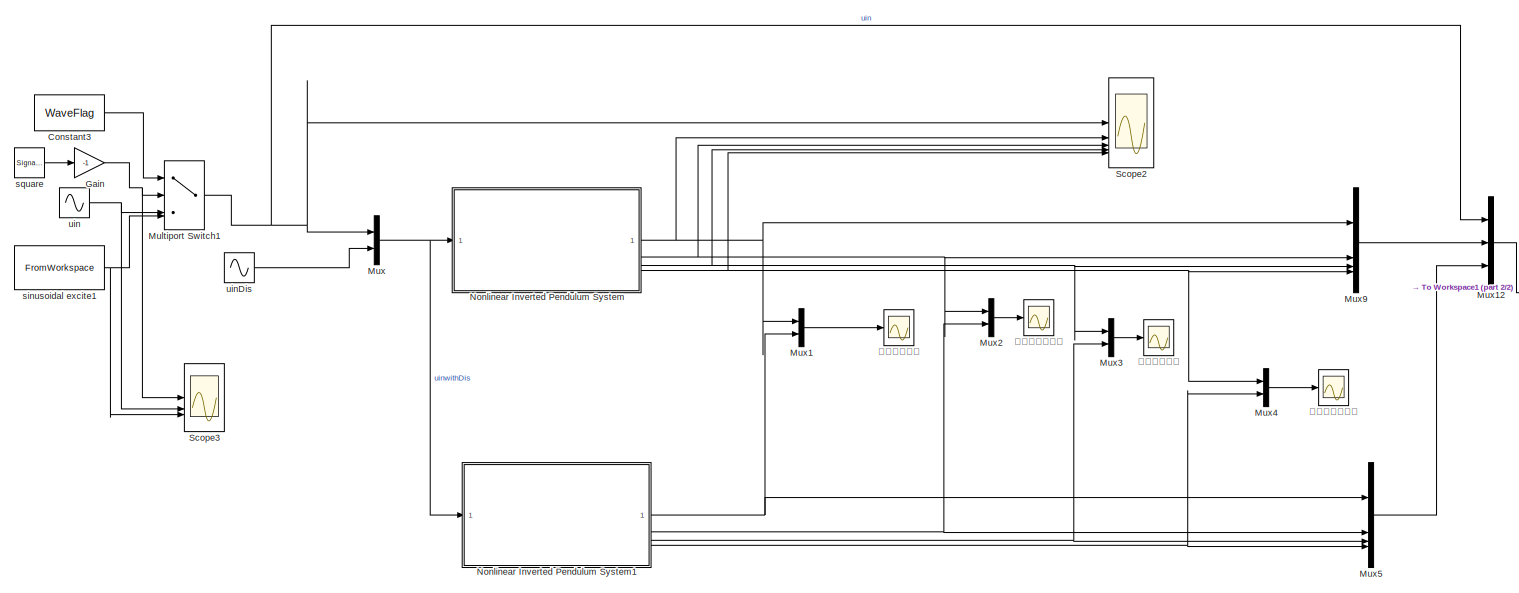
[diagram: root canvas - part 1/2, most of the canvas]
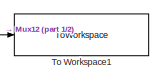
[diagram: root canvas - part 2/2, middle right region]
MODEL slx_0cdd1e34a157
KIND model
CONFIG AbsTol = 1e-6
CONFIG EnableMultiTasking = on
CONFIG FixedStep = 0.001
CONFIG MaxStep = auto
CONFIG MinStep = auto
CONFIG RelTol = 1e-6
CONFIG SampleTimeConstraint = Unconstrained
CONFIG SolverName = ode15s
CONFIG StartTime = 0.0
CONFIG StopTime = 10
BLOCK [Constant] Constant3
  Value = WaveFlag
BLOCK [Gain] Gain
  Gain = -1
BLOCK [MultiPortSwitch] Multiport Switch1
  InputSameDT = off
  SaturateOnIntegerOverflow = off
BLOCK [Mux] Mux
  DisplayOption = bar
  Inputs = 2
BLOCK [Mux] Mux1
  DisplayOption = bar
  Inputs = 2
BLOCK [Mux] Mux12
  DisplayOption = bar
  Inputs = 3
BLOCK [Mux] Mux2
  DisplayOption = bar
  Inputs = 2
BLOCK [Mux] Mux3
  DisplayOption = bar
  Inputs = 2
BLOCK [Mux] Mux4
  DisplayOption = bar
  Inputs = 2
BLOCK [Mux] Mux5
  DisplayOption = bar
BLOCK [Mux] Mux9
  DisplayOption = bar
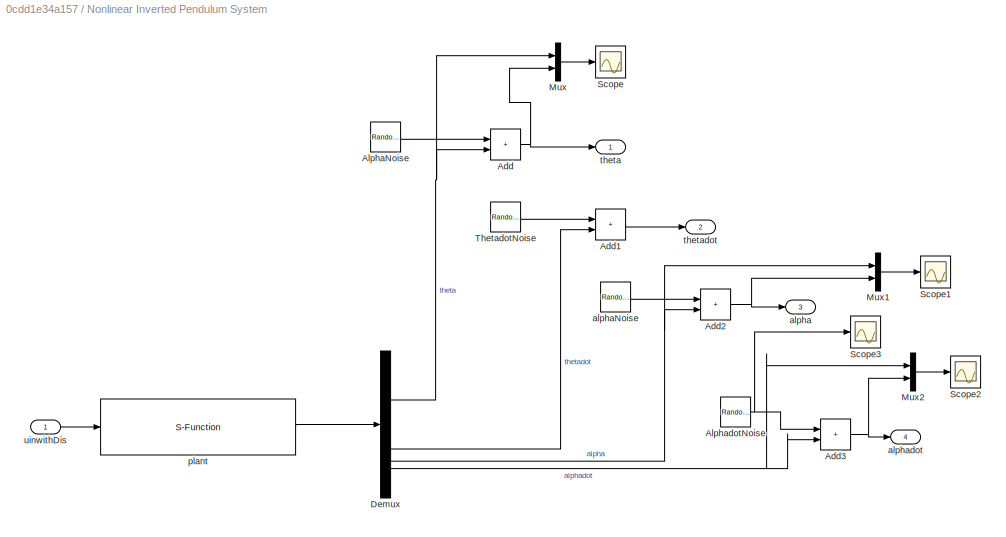
BLOCK [SubSystem] Nonlinear Inverted Pendulum System
BLOCK [Sum] Nonlinear Inverted Pendulum System/Add
  IconShape = rectangular
BLOCK [Sum] Nonlinear Inverted Pendulum System/Add1
  IconShape = rectangular
BLOCK [Sum] Nonlinear Inverted Pendulum System/Add2
  IconShape = rectangular
BLOCK [Sum] Nonlinear Inverted Pendulum System/Add3
  IconShape = rectangular
BLOCK [RandomNumber] Nonlinear Inverted Pendulum System/AlphaNoise
  Mean = NoisePara(1,1)
  SampleTime = NoisePara(1,4)
  Seed = NoisePara(1,3)
  Variance = NoisePara(1,2)
BLOCK [RandomNumber] Nonlinear Inverted Pendulum System/AlphadotNoise
  Mean = NoisePara(4,1)
  SampleTime = NoisePara(4,4)
  Seed = NoisePara(4,3)
  Variance = NoisePara(4,2)
BLOCK [Demux] Nonlinear Inverted Pendulum System/Demux
BLOCK [Mux] Nonlinear Inverted Pendulum System/Mux
  DisplayOption = bar
  Inputs = 2
BLOCK [Mux] Nonlinear Inverted Pendulum System/Mux1
  DisplayOption = bar
  Inputs = 2
BLOCK [Mux] Nonlinear Inverted Pendulum System/Mux2
  DisplayOption = bar
  Inputs = 2
BLOCK [Scope] Nonlinear Inverted Pendulum System/Scope
  Floating = off
  NumInputPorts = 1
  ScopeSpecificationString = Simulink.scopes.TimeScopeBlockCfg('CurrentConfiguration', extmgr.ConfigurationSet(extmgr.Configuration('Core','General UI',true),extmgr.Configuration('Core','Source UI',true),extmgr.Configuration('Sources','WiredSimulink',true,'DataLoggingVariableName','ScopeData1'),extmgr.Configuration('Visuals','Time Domain',true,'SerializedDisplays',{struct('MinYLimReal','-47.25618','MaxYLimReal','49.39689','YL...<+1376ch>
BLOCK [Scope] Nonlinear Inverted Pendulum System/Scope1
  Floating = off
  NumInputPorts = 1
  ScopeSpecificationString = Simulink.scopes.TimeScopeBlockCfg('CurrentConfiguration', extmgr.ConfigurationSet(extmgr.Configuration('Core','General UI',true),extmgr.Configuration('Core','Source UI',true),extmgr.Configuration('Sources','WiredSimulink',true,'DataLoggingVariableName','ScopeData2'),extmgr.Configuration('Visuals','Time Domain',true,'SerializedDisplays',{struct('MinYLimReal','-22.29261','MaxYLimReal','130.5113','YL...<+1377ch>
BLOCK [Scope] Nonlinear Inverted Pendulum System/Scope2
  Floating = off
  NumInputPorts = 1
  ScopeSpecificationString = Simulink.scopes.TimeScopeBlockCfg('CurrentConfiguration', extmgr.ConfigurationSet(extmgr.Configuration('Core','General UI',true),extmgr.Configuration('Core','Source UI',true),extmgr.Configuration('Sources','WiredSimulink',true,'DataLoggingVariableName','ScopeData3'),extmgr.Configuration('Visuals','Time Domain',true,'SerializedDisplays',{struct('MinYLimReal','-281.90197','MaxYLimReal','281.82439','...<+1388ch>
BLOCK [Scope] Nonlinear Inverted Pendulum System/Scope3
  Floating = off
  NumInputPorts = 1
  ScopeSpecificationString = Simulink.scopes.TimeScopeBlockCfg('CurrentConfiguration', extmgr.ConfigurationSet(extmgr.Configuration('Core','General UI',true),extmgr.Configuration('Core','Source UI',true),extmgr.Configuration('Sources','WiredSimulink',true,'DataLoggingVariableName','ScopeData4'),extmgr.Configuration('Visuals','Time Domain',true,'SerializedDisplays',{struct('MinYLimReal','-19.15922','MaxYLimReal','20.14516','YL...<+1378ch>
BLOCK [RandomNumber] Nonlinear Inverted Pendulum System/ThetadotNoise
  Mean = NoisePara(2,1)
  SampleTime = NoisePara(2,4)
  Seed = NoisePara(2,3)
  Variance = NoisePara(2,2)
BLOCK [Outport] Nonlinear Inverted Pendulum System/alpha
  Port = 3
BLOCK [RandomNumber] Nonlinear Inverted Pendulum System/alphaNoise
  Mean = NoisePara(3,1)
  SampleTime = NoisePara(3,4)
  Seed = NoisePara(3,3)
  Variance = NoisePara(3,2)
BLOCK [Outport] Nonlinear Inverted Pendulum System/alphadot
  Port = 4
BLOCK [S-Function] Nonlinear Inverted Pendulum System/plant
  EnableBusSupport = off
  FunctionName = MIC_sfun_Inverted_Pendulumn_Dynamics
  Parameters = InitX,TFPara,ModelSelFlag
  SFcnIsStateOwnerBlock = off
  SFunctionDeploymentMode = off
BLOCK [Outport] Nonlinear Inverted Pendulum System/theta
BLOCK [Outport] Nonlinear Inverted Pendulum System/thetadot
  Port = 2
BLOCK [Inport] Nonlinear Inverted Pendulum System/uinwithDis
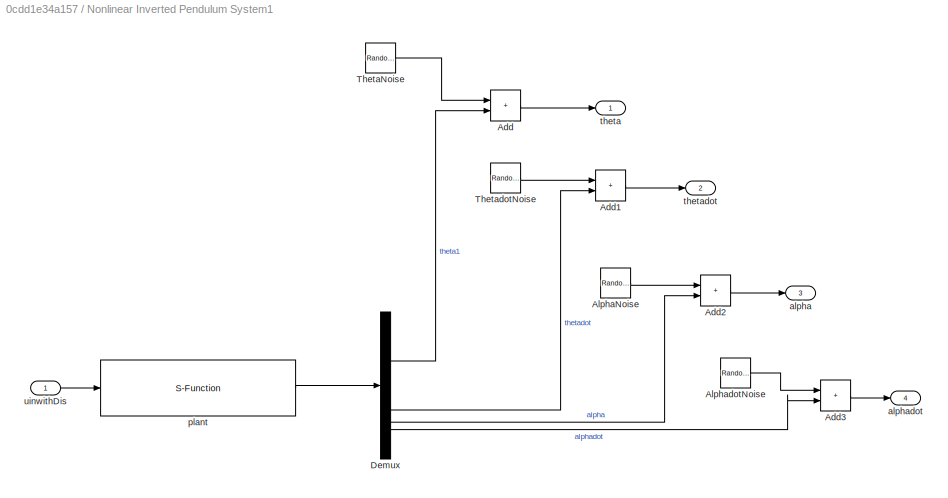
BLOCK [SubSystem] Nonlinear Inverted Pendulum System1
BLOCK [Sum] Nonlinear Inverted Pendulum System1/Add
  IconShape = rectangular
BLOCK [Sum] Nonlinear Inverted Pendulum System1/Add1
  IconShape = rectangular
BLOCK [Sum] Nonlinear Inverted Pendulum System1/Add2
  IconShape = rectangular
BLOCK [Sum] Nonlinear Inverted Pendulum System1/Add3
  IconShape = rectangular
BLOCK [RandomNumber] Nonlinear Inverted Pendulum System1/AlphaNoise
  Mean = NoisePara(3,1)
  SampleTime = NoisePara(3,4)
  Seed = NoisePara(3,3)
  Variance = NoisePara(3,2)
BLOCK [RandomNumber] Nonlinear Inverted Pendulum System1/AlphadotNoise
  Mean = NoisePara(4,1)
  SampleTime = NoisePara(4,4)
  Seed = NoisePara(4,3)
  Variance = NoisePara(4,2)
BLOCK [Demux] Nonlinear Inverted Pendulum System1/Demux
BLOCK [RandomNumber] Nonlinear Inverted Pendulum System1/ThetaNoise
  Mean = NoisePara(1,1)
  SampleTime = NoisePara(1,4)
  Seed = NoisePara(1,3)
  Variance = NoisePara(1,2)
BLOCK [RandomNumber] Nonlinear Inverted Pendulum System1/ThetadotNoise
  Mean = NoisePara(2,1)
  SampleTime = NoisePara(2,4)
  Seed = NoisePara(2,3)
  Variance = NoisePara(2,2)
BLOCK [Outport] Nonlinear Inverted Pendulum System1/alpha
  Port = 3
BLOCK [Outport] Nonlinear Inverted Pendulum System1/alphadot
  Port = 4
BLOCK [S-Function] Nonlinear Inverted Pendulum System1/plant
  EnableBusSupport = off
  FunctionName = MIC_sfun_Inverted_Pendulumn_Dynamics
  Parameters = InitX,TFPara,ModelSelFlag
  SFcnIsStateOwnerBlock = off
  SFunctionDeploymentMode = off
BLOCK [Outport] Nonlinear Inverted Pendulum System1/theta
BLOCK [Outport] Nonlinear Inverted Pendulum System1/thetadot
  Port = 2
BLOCK [Inport] Nonlinear Inverted Pendulum System1/uinwithDis
BLOCK [Scope] Scope2
  Floating = off
  NumInputPorts = 5
  ScopeSpecificationString = Simulink.scopes.TimeScopeBlockCfg('CurrentConfiguration', extmgr.ConfigurationSet(extmgr.Configuration('Core','General UI',true,'FigureColor',[1 1 1],'DisplayFullSourceName',true),extmgr.Configuration('Core','Source UI',true),extmgr.Configuration('Sources','WiredSimulink',true,'DataLogging',true,'DataLoggingVariableName','ScopeData1','DataLoggingSaveFormat','Structure','DataLoggingDecimation','1',...<+10259ch>
BLOCK [Scope] Scope3
  Floating = off
  NumInputPorts = 3
  ScopeSpecificationString = Simulink.scopes.TimeScopeBlockCfg('CurrentConfiguration', extmgr.ConfigurationSet(extmgr.Configuration('Core','General UI',true,'FigureColor',[1 1 1]),extmgr.Configuration('Core','Source UI',true),extmgr.Configuration('Sources','WiredSimulink',true,'DataLogging',true,'DataLoggingVariableName','ScopeData2','DataLoggingSaveFormat','Structure','DataLoggingDecimation','1','DataLoggingDecimateData',tru...<+4931ch>
BLOCK [ToWorkspace] To Workspace1
  FixptAsFi = on
  MaxDataPoints = inf
  SampleTime = IdentTs
  SaveFormat = Structure With Time
  VariableName = ResponseData
BLOCK [FromWorkspace] sinusoidal excite1
  SampleTime = IdentTs
  VariableName = IdentTrajData
BLOCK [SignalGenerator] square
  Amplitude = UinSquare(1)
  Frequency = UinSquare(2)
  Units = rad/sec
  WaveForm = square
BLOCK [Sin] uin
  Amplitude = UinSin(1)
  Bias = UinSin(3)
  Frequency = UinSin(2)
  SampleTime = 0
BLOCK [Sin] uinDis
  Amplitude = UinDis(1)
  Bias = UinDis(3)
  Frequency = UinDis(2)
  SampleTime = 0
BLOCK [Scope] 摆杆角度比较
  Floating = off
  NumInputPorts = 1
  ScopeSpecificationString = Simulink.scopes.TimeScopeBlockCfg('CurrentConfiguration', extmgr.ConfigurationSet(extmgr.Configuration('Core','General UI',true),extmgr.Configuration('Core','Source UI',true),extmgr.Configuration('Sources','WiredSimulink',true,'DataLoggingSaveFormat','StructureWithTime','DataLoggingDecimation','1','DataLoggingDecimateData',true,'DataLogging',true,'DataLoggingVariableName','ScopeData10'),extmgr.Con...<+1774ch>
BLOCK [Scope] 摆杆角速度比较
  Floating = off
  NumInputPorts = 1
  ScopeSpecificationString = Simulink.scopes.TimeScopeBlockCfg('CurrentConfiguration', extmgr.ConfigurationSet(extmgr.Configuration('Core','General UI',true),extmgr.Configuration('Core','Source UI',true),extmgr.Configuration('Sources','WiredSimulink',true,'DataLoggingSaveFormat','StructureWithTime','DataLoggingDecimation','1','DataLoggingDecimateData',true,'DataLogging',true,'DataLoggingVariableName','ScopeData11'),extmgr.Con...<+2160ch>
BLOCK [Scope] 摆臂角度比较
  Floating = off
  NumInputPorts = 1
  ScopeSpecificationString = Simulink.scopes.TimeScopeBlockCfg('CurrentConfiguration', extmgr.ConfigurationSet(extmgr.Configuration('Core','General UI',true),extmgr.Configuration('Core','Source UI',true),extmgr.Configuration('Sources','WiredSimulink',true,'DataLoggingSaveFormat','StructureWithTime','DataLoggingDecimation','1','DataLoggingDecimateData',true,'DataLogging',true,'DataLoggingVariableName','ScopeData3'),extmgr.Conf...<+1780ch>
BLOCK [Scope] 摆臂角速度比较
  Floating = off
  NumInputPorts = 1
  ScopeSpecificationString = Simulink.scopes.TimeScopeBlockCfg('CurrentConfiguration', extmgr.ConfigurationSet(extmgr.Configuration('Core','General UI',true),extmgr.Configuration('Core','Source UI',true),extmgr.Configuration('Sources','WiredSimulink',true,'DataLoggingSaveFormat','StructureWithTime','DataLoggingDecimation','1','DataLoggingDecimateData',true,'DataLogging',true,'DataLoggingVariableName','ScopeData9'),extmgr.Conf...<+1761ch>
LINE Constant3:1 -> Multiport Switch1:1
NET Gain:1 -> Multiport Switch1:2, Scope3:1
NET Multiport Switch1:1 -> Mux12:1, Mux:1, Scope2:1
LINE Mux12:1 -> To Workspace1:1
LINE Mux1:1 -> 摆臂角度比较:1
LINE Mux2:1 -> 摆臂角速度比较:1
LINE Mux3:1 -> 摆杆角度比较:1
LINE Mux4:1 -> 摆杆角速度比较:1
LINE Mux5:1 -> Mux12:3
LINE Mux9:1 -> Mux12:2
NET Mux:1 -> Nonlinear Inverted Pendulum System1:1, Nonlinear Inverted Pendulum System:1
LINE Nonlinear Inverted Pendulum System/Add1:1 -> Nonlinear Inverted Pendulum System/thetadot:1
NET Nonlinear Inverted Pendulum System/Add2:1 -> Nonlinear Inverted Pendulum System/Mux1:2, Nonlinear Inverted Pendulum System/alpha:1
NET Nonlinear Inverted Pendulum System/Add3:1 -> Nonlinear Inverted Pendulum System/Mux2:2, Nonlinear Inverted Pendulum System/alphadot:1
NET Nonlinear Inverted Pendulum System/Add:1 -> Nonlinear Inverted Pendulum System/Mux:2, Nonlinear Inverted Pendulum System/theta:1
LINE Nonlinear Inverted Pendulum System/AlphaNoise:1 -> Nonlinear Inverted Pendulum System/Add:1
NET Nonlinear Inverted Pendulum System/AlphadotNoise:1 -> Nonlinear Inverted Pendulum System/Add3:1, Nonlinear Inverted Pendulum System/Scope3:1
NET Nonlinear Inverted Pendulum System/Demux:1 -> Nonlinear Inverted Pendulum System/Add:2, Nonlinear Inverted Pendulum System/Mux:1
LINE Nonlinear Inverted Pendulum System/Demux:2 -> Nonlinear Inverted Pendulum System/Add1:2
NET Nonlinear Inverted Pendulum System/Demux:3 -> Nonlinear Inverted Pendulum System/Add2:2, Nonlinear Inverted Pendulum System/Mux1:1
NET Nonlinear Inverted Pendulum System/Demux:4 -> Nonlinear Inverted Pendulum System/Add3:2, Nonlinear Inverted Pendulum System/Mux2:1
LINE Nonlinear Inverted Pendulum System/Mux1:1 -> Nonlinear Inverted Pendulum System/Scope1:1
LINE Nonlinear Inverted Pendulum System/Mux2:1 -> Nonlinear Inverted Pendulum System/Scope2:1
LINE Nonlinear Inverted Pendulum System/Mux:1 -> Nonlinear Inverted Pendulum System/Scope:1
LINE Nonlinear Inverted Pendulum System/ThetadotNoise:1 -> Nonlinear Inverted Pendulum System/Add1:1
LINE Nonlinear Inverted Pendulum System/alphaNoise:1 -> Nonlinear Inverted Pendulum System/Add2:1
LINE Nonlinear Inverted Pendulum System/plant:1 -> Nonlinear Inverted Pendulum System/Demux:1
LINE Nonlinear Inverted Pendulum System/uinwithDis:1 -> Nonlinear Inverted Pendulum System/plant:1
LINE Nonlinear Inverted Pendulum System1/Add1:1 -> Nonlinear Inverted Pendulum System1/thetadot:1
LINE Nonlinear Inverted Pendulum System1/Add2:1 -> Nonlinear Inverted Pendulum System1/alpha:1
LINE Nonlinear Inverted Pendulum System1/Add3:1 -> Nonlinear Inverted Pendulum System1/alphadot:1
LINE Nonlinear Inverted Pendulum System1/Add:1 -> Nonlinear Inverted Pendulum System1/theta:1
LINE Nonlinear Inverted Pendulum System1/AlphaNoise:1 -> Nonlinear Inverted Pendulum System1/Add2:1
LINE Nonlinear Inverted Pendulum System1/AlphadotNoise:1 -> Nonlinear Inverted Pendulum System1/Add3:1
LINE Nonlinear Inverted Pendulum System1/Demux:1 -> Nonlinear Inverted Pendulum System1/Add:2
LINE Nonlinear Inverted Pendulum System1/Demux:2 -> Nonlinear Inverted Pendulum System1/Add1:2
LINE Nonlinear Inverted Pendulum System1/Demux:3 -> Nonlinear Inverted Pendulum System1/Add2:2
LINE Nonlinear Inverted Pendulum System1/Demux:4 -> Nonlinear Inverted Pendulum System1/Add3:2
LINE Nonlinear Inverted Pendulum System1/ThetaNoise:1 -> Nonlinear Inverted Pendulum System1/Add:1
LINE Nonlinear Inverted Pendulum System1/ThetadotNoise:1 -> Nonlinear Inverted Pendulum System1/Add1:1
LINE Nonlinear Inverted Pendulum System1/plant:1 -> Nonlinear Inverted Pendulum System1/Demux:1
LINE Nonlinear Inverted Pendulum System1/uinwithDis:1 -> Nonlinear Inverted Pendulum System1/plant:1
NET Nonlinear Inverted Pendulum System1:1 -> Mux1:2, Mux5:1
NET Nonlinear Inverted Pendulum System1:2 -> Mux2:2, Mux5:2
NET Nonlinear Inverted Pendulum System1:3 -> Mux3:2, Mux5:3
NET Nonlinear Inverted Pendulum System1:4 -> Mux4:2, Mux5:4
NET Nonlinear Inverted Pendulum System:1 -> Mux1:1, Mux9:1, Scope2:2
NET Nonlinear Inverted Pendulum System:2 -> Mux2:1, Mux9:2, Scope2:3
NET Nonlinear Inverted Pendulum System:3 -> Mux3:1, Mux9:3, Scope2:4
NET Nonlinear Inverted Pendulum System:4 -> Mux4:1, Mux9:4, Scope2:5
NET sinusoidal excite1:1 -> Multiport Switch1:4, Scope3:3
LINE square:1 -> Gain:1
NET uin:1 -> Multiport Switch1:3, Scope3:2
LINE uinDis:1 -> Mux:2
note: NET lines group one-source signal fan-out (src -> all destinations, sorted); 1:1 wires keep LINE
